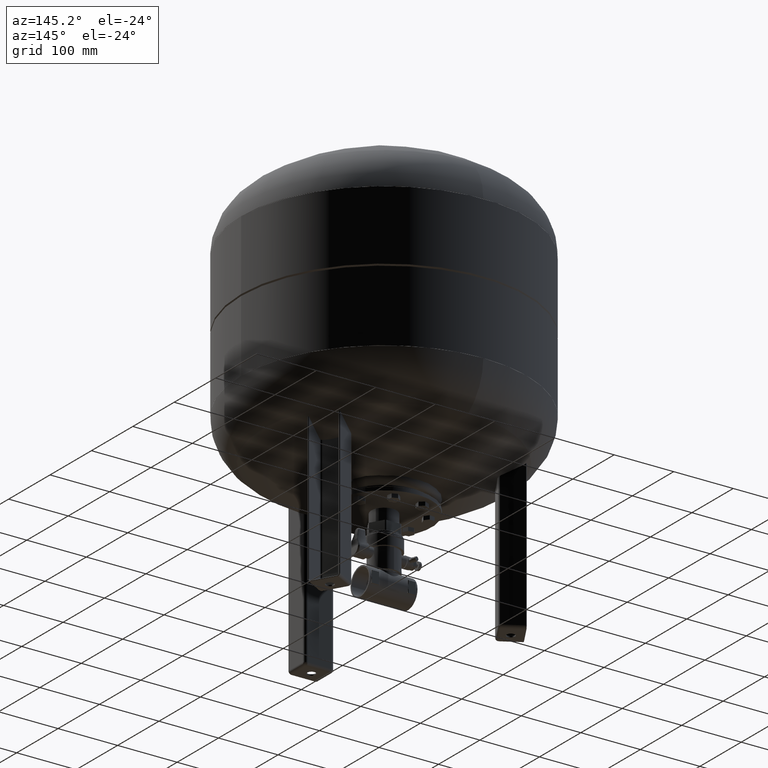
[diagram: clean part render]
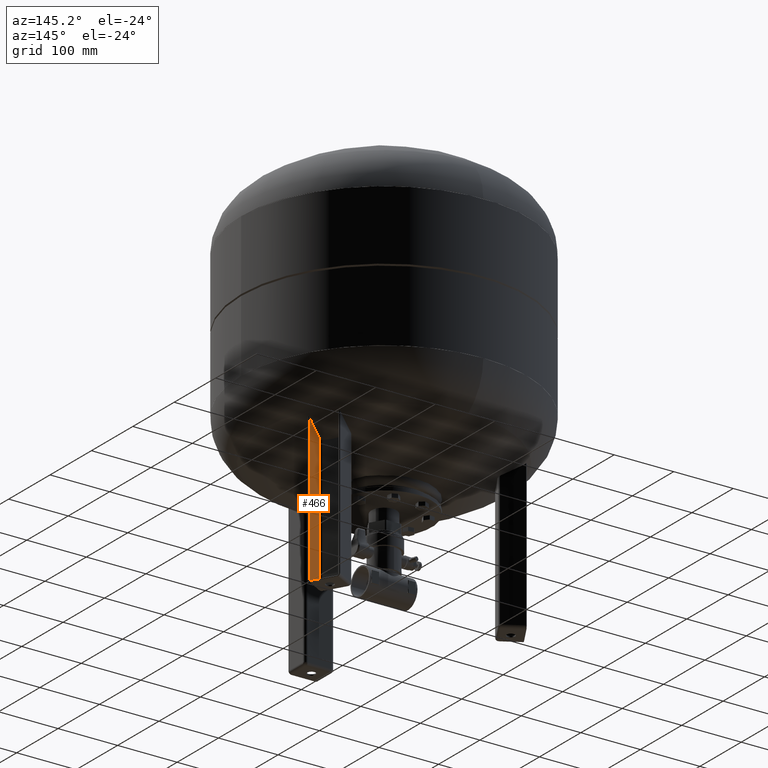
[diagram: same view with one face highlighted and labeled with its STEP entity id]
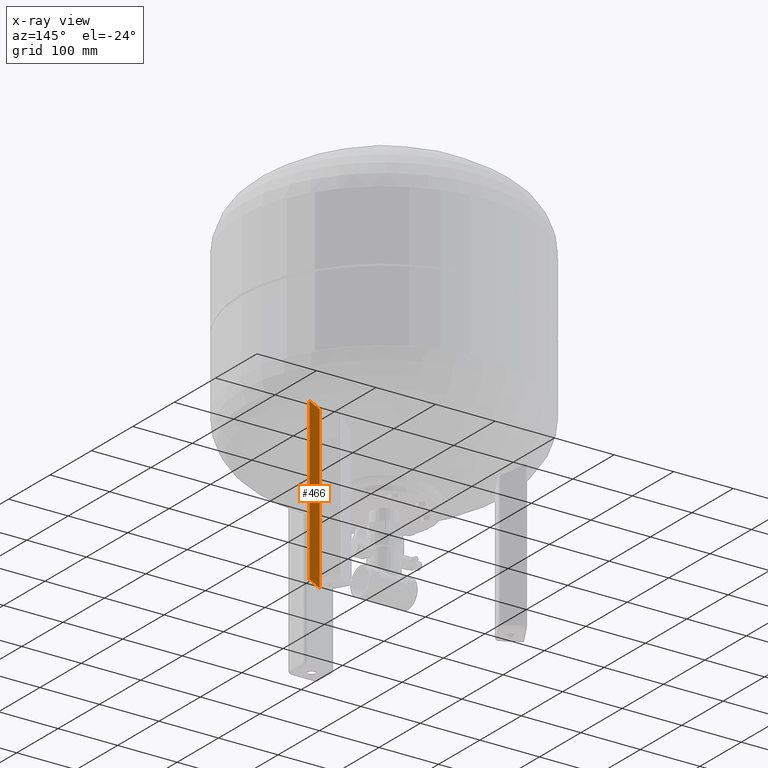
[diagram: x-ray of the same camera — body ghosted, the highlighted face saturated]
A machine part, auxiliary view. The second image highlights one B-rep face of the part: STEP entity #466.
The next image is the same camera in x-ray: the body ghosted, the highlighted face saturated — about 0% of this face is hidden behind the body in this view.
In plain terms, the highlighted planar face has unit normal (0.5, -0.866, -0).
Its self-contained STEP definition (entity closure, byte-faithful):
#182=CARTESIAN_POINT('',(179.691941036073360,77.764428414850087,274.0));
#183=VERTEX_POINT('',#182);
#191=CARTESIAN_POINT('',(150.247077307402440,60.764428414850087,274.0));
#192=VERTEX_POINT('',#191);
#193=CARTESIAN_POINT('',(150.247077307402440,60.764428414850087,274.0));
#194=DIRECTION('',(0.866025403784439,0.500000000000000,0.0));
#195=VECTOR('',#194,34.000000000000007);
#196=LINE('',#193,#195);
#197=EDGE_CURVE('',#192,#183,#196,.T.);
#382=CARTESIAN_POINT('',(179.691941036073360,77.764428414850087,4.499999999999996));
#383=VERTEX_POINT('',#382);
#433=CARTESIAN_POINT('',(179.691941036073360,77.764428414850087,4.499999999999996));
#434=DIRECTION('',(0.0,0.0,1.0));
#435=VECTOR('',#434,269.500000000000000);
#436=LINE('',#433,#435);
#437=EDGE_CURVE('',#383,#183,#436,.T.);
#443=CARTESIAN_POINT('',(180.557966439857810,78.264428414850087,1.999999999999996));
#444=DIRECTION('',(0.500000000000000,-0.866025403784439,-1.836970E-016));
#445=DIRECTION('',(0.866025403784439,0.500000000000000,4.350819E-032));
#446=AXIS2_PLACEMENT_3D('',#443,#444,#445);
#447=PLANE('',#446);
#448=ORIENTED_EDGE('',*,*,#437,.F.);
#449=CARTESIAN_POINT('',(150.247077307402440,60.764428414850087,4.499999999999996));
#450=VERTEX_POINT('',#449);
#451=CARTESIAN_POINT('',(150.247077307402440,60.764428414850087,4.499999999999996));
#452=DIRECTION('',(0.866025403784439,0.500000000000000,0.0));
#453=VECTOR('',#452,34.000000000000007);
#454=LINE('',#451,#453);
#455=EDGE_CURVE('',#450,#383,#454,.T.);
#456=ORIENTED_EDGE('',*,*,#455,.F.);
#457=CARTESIAN_POINT('',(150.247077307402440,60.764428414850087,274.0));
#458=DIRECTION('',(0.0,0.0,-1.0));
#459=VECTOR('',#458,269.500000000000000);
#460=LINE('',#457,#459);
#461=EDGE_CURVE('',#192,#450,#460,.T.);
#462=ORIENTED_EDGE('',*,*,#461,.F.);
#463=ORIENTED_EDGE('',*,*,#197,.T.);
#464=EDGE_LOOP('',(#448,#456,#462,#463));
#465=FACE_OUTER_BOUND('',#464,.T.);
#466=ADVANCED_FACE('',(#465),#447,.F.);